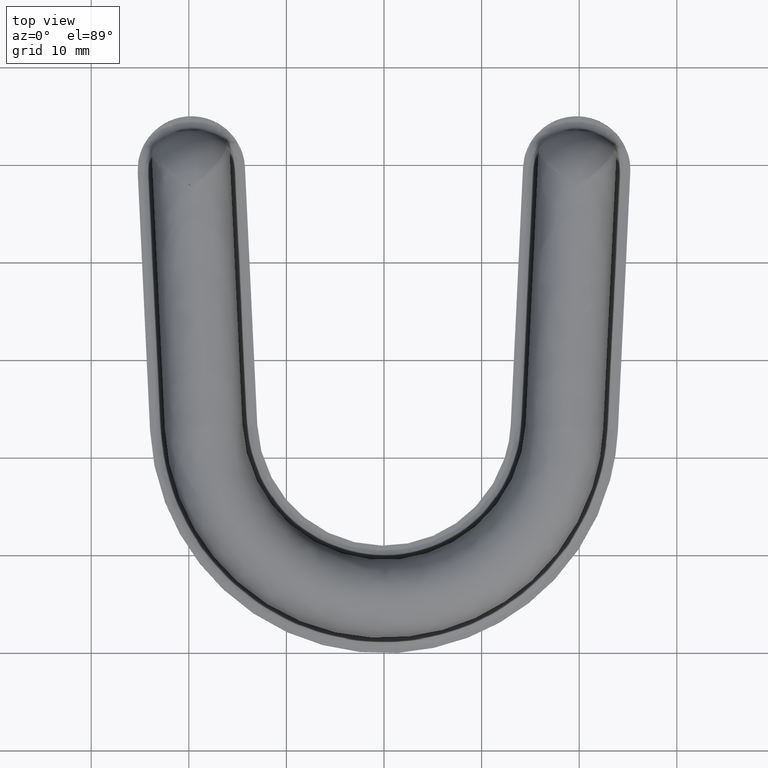
[diagram: clean part render]
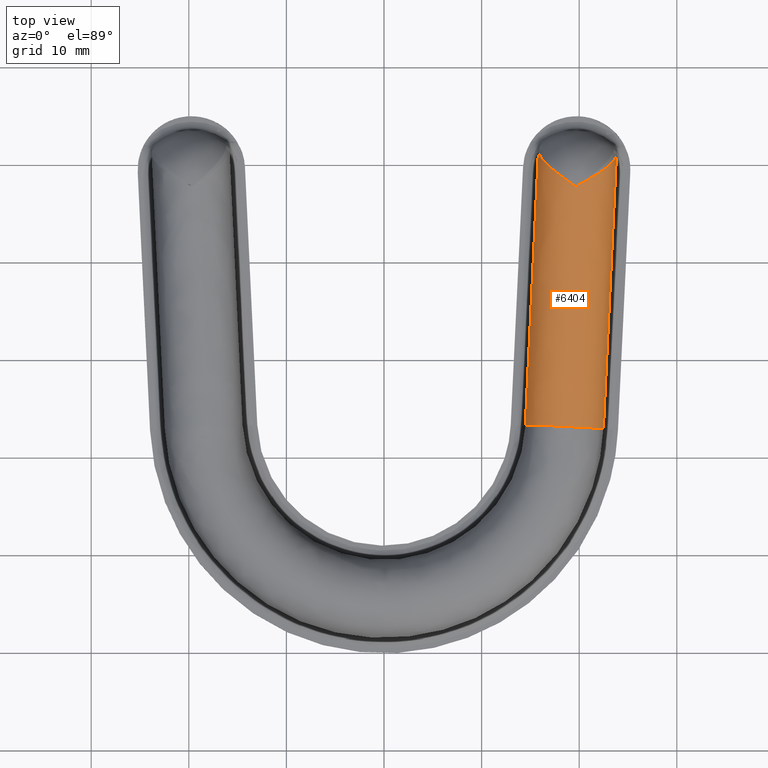
[diagram: same view with one face highlighted and labeled with its STEP entity id]
A machine part, top view. The second image highlights one B-rep face of the part: STEP entity #6404.
In plain terms, the highlighted face is a freeform B-spline surface patch.
Its self-contained STEP definition (entity closure, byte-faithful):
#4223=CARTESIAN_POINT('',(19.696274890317451,47.703062010686402,6.999754139313130));
#4224=VERTEX_POINT('',#4223);
#4225=CARTESIAN_POINT('',(19.694373272228951,47.703484691524693,6.999774007242640));
#4226=VERTEX_POINT('',#4225);
#4227=CARTESIAN_POINT('',(19.696274890317468,47.703062010686452,6.999754139313131));
#4228=CARTESIAN_POINT('',(19.695641020727209,47.703202904193972,6.999761234061205));
#4229=CARTESIAN_POINT('',(19.695007149436389,47.703343797782622,6.999768175265299));
#4230=CARTESIAN_POINT('',(19.694373272228951,47.703484691524693,6.999774007242640));
#4231=QUASI_UNIFORM_CURVE('',3,(#4227,#4228,#4229,#4230),.UNSPECIFIED.,.F.,.U.);
#4232=EDGE_CURVE('',#4224,#4226,#4231,.T.);
#4234=CARTESIAN_POINT('',(23.817407432113001,51.077363115184298,3.000000000000085));
#4235=VERTEX_POINT('',#4234);
#4236=CARTESIAN_POINT('',(23.817407432113001,51.077363115184298,3.000000000000085));
#4237=CARTESIAN_POINT('',(23.811504648685140,50.953636637018938,3.276302199455250));
#4238=CARTESIAN_POINT('',(23.777154304607411,50.828395479552462,3.544862693369074));
#4239=CARTESIAN_POINT('',(23.657510420612539,50.572176270131543,4.066613603286871));
#4240=CARTESIAN_POINT('',(23.572161472845860,50.441224118619523,4.319803310137519));
#4241=CARTESIAN_POINT('',(23.433902966155198,50.271976701043840,4.625767744089024));
#4242=CARTESIAN_POINT('',(23.404575700992240,50.237754157374887,4.686590815460784));
#4243=CARTESIAN_POINT('',(23.343190247341450,50.169222906426207,4.806208216850171));
#4244=CARTESIAN_POINT('',(23.311152437104369,50.134926365729662,4.864988606607472));
#4245=CARTESIAN_POINT('',(23.211128480384762,50.031870909840897,5.038289973455373));
#4246=CARTESIAN_POINT('',(23.139239381819358,49.962946174229053,5.149776832105212));
#4247=CARTESIAN_POINT('',(22.908645603783981,49.754937168423133,5.472236565154709));
#4248=CARTESIAN_POINT('',(22.735113627996760,49.614638222041727,5.671296221715901));
#4249=CARTESIAN_POINT('',(22.494084502777920,49.435194564060282,5.899361033517941));
#4250=CARTESIAN_POINT('',(22.444702991798898,49.399132910356037,5.943880467310346));
#4251=CARTESIAN_POINT('',(22.344483315567011,49.327229613742787,6.029993560731509));
#4252=CARTESIAN_POINT('',(22.293533863497579,49.291304425463338,6.071694821716544));
#4253=CARTESIAN_POINT('',(22.138253420150821,49.183531924917823,6.192793777206910));
#4254=CARTESIAN_POINT('',(22.031494635943599,49.111687407238882,6.268193431576325));
#4255=CARTESIAN_POINT('',(21.702023749052760,48.895577920035578,6.478621253681845));
#4256=CARTESIAN_POINT('',(21.470171178617282,48.750752112486083,6.597983592236779));
#4257=CARTESIAN_POINT('',(21.165902163158499,48.566759897452997,6.720189019347099));
#4258=CARTESIAN_POINT('',(21.104217859740540,48.529750868563653,6.743306673490809));
#4259=CARTESIAN_POINT('',(20.979944532805838,48.455702594688837,6.786583450517439));
#4260=CARTESIAN_POINT('',(20.917409755709450,48.418694539555702,6.806730210644484));
#4261=CARTESIAN_POINT('',(20.728663365705849,48.307641040563851,6.862722217280962));
#4262=CARTESIAN_POINT('',(20.601310871779152,48.233567489413140,6.894126459923262));
#4263=CARTESIAN_POINT('',(20.343801740094431,48.084920104476630,6.945052310293685));
#4264=CARTESIAN_POINT('',(20.213612937630380,48.010345597709218,6.964552019993813));
#4265=CARTESIAN_POINT('',(20.017682565996392,47.898405394635716,6.984630087362801));
#4266=CARTESIAN_POINT('',(19.952184183800739,47.861054553461287,6.989804604509751));
#4267=CARTESIAN_POINT('',(19.853959509659688,47.804810688579337,6.995272711646257));
#4268=CARTESIAN_POINT('',(19.821201018457590,47.786046810987912,6.996713822406410));
#4269=CARTESIAN_POINT('',(19.772253057772520,47.757538444676207,6.998301020520115));
#4270=CARTESIAN_POINT('',(19.755950194464639,47.748002935225777,6.998734493554608));
#4271=CARTESIAN_POINT('',(19.731801257406499,47.733192946558610,6.999239245189216));
#4272=CARTESIAN_POINT('',(19.723783892761499,47.728194160724733,6.999383418176059));
#4273=CARTESIAN_POINT('',(19.712144203527959,47.720120373441560,6.999560875374033));
#4274=CARTESIAN_POINT('',(19.708317186112300,47.717340089251437,6.999613645956629));
#4275=CARTESIAN_POINT('',(19.703008008949030,47.712718330872491,6.999680121361167));
#4276=CARTESIAN_POINT('',(19.701307185512729,47.711102911712999,6.999700213372075));
#4277=CARTESIAN_POINT('',(19.698272976353181,47.707473074782229,6.999734197273455));
#4278=CARTESIAN_POINT('',(19.696901804323439,47.705415785007503,6.999748439744554));
#4279=CARTESIAN_POINT('',(19.696274890317451,47.703062010686402,6.999754139313130));
#4280=B_SPLINE_CURVE_WITH_KNOTS('',3,(#4236,#4237,#4238,#4239,#4240,#4241,#4242,#4243,#4244,#4245,#4246,#4247,#4248,#4249,#4250,#4251,#4252,#4253,#4254,#4255,#4256,#4257,#4258,#4259,#4260,#4261,#4262,#4263,#4264,#4265,#4266,#4267,#4268,#4269,#4270,#4271,#4272,#4273,#4274,#4275,#4276,#4277,#4278,#4279),.UNSPECIFIED.,.F.,.U.,(4,2,2,2,2,2,2,2,2,2,2,2,2,2,2,2,2,2,2,2,2,4),(0.0,0.124999999999998,0.249999999999996,0.281249999999997,0.312499999999997,0.374999999999998,0.500000000000000,0.531250000000002,0.562500000000003,0.625000000000005,0.750000000000008,0.781250000000007,0.812500000000006,0.875000000000003,0.937500000000001,0.968749999999999,0.984374999999998,0.992187499999999,0.996093750000000,0.998046875000001,0.999023437500001,1.0),.UNSPECIFIED.);
#4281=EDGE_CURVE('',#4235,#4224,#4280,.T.);
#4751=CARTESIAN_POINT('',(15.827322837945649,51.475923039123600,3.000000000000085));
#4752=VERTEX_POINT('',#4751);
#4966=CARTESIAN_POINT('',(19.648461836325701,47.703484692421199,6.999997624523350));
#4967=VERTEX_POINT('',#4966);
#4968=CARTESIAN_POINT('',(19.646560111323399,47.703535510413197,6.999996446272830));
#4969=VERTEX_POINT('',#4968);
#4970=CARTESIAN_POINT('',(19.648461836325701,47.703484692421199,6.999997624523350));
#4971=CARTESIAN_POINT('',(19.647827928481799,47.703501631804343,6.999997985762443));
#4972=CARTESIAN_POINT('',(19.647194019802249,47.703518571113548,6.999997291383392));
#4973=CARTESIAN_POINT('',(19.646560111323389,47.703535510413182,6.999996446272832));
#4974=QUASI_UNIFORM_CURVE('',3,(#4970,#4971,#4972,#4973),.UNSPECIFIED.,.F.,.U.);
#4975=EDGE_CURVE('',#4967,#4969,#4974,.T.);
#5021=CARTESIAN_POINT('',(19.646560111323399,47.703535510413197,6.999996446272830));
#5022=CARTESIAN_POINT('',(19.646612412928189,47.705970182292923,6.999996361254637));
#5023=CARTESIAN_POINT('',(19.645730760561339,47.708295202448411,6.999995109303510));
#5024=CARTESIAN_POINT('',(19.643339791082859,47.712424871603943,6.999990146186087));
#5025=CARTESIAN_POINT('',(19.641819997006468,47.714314889516132,6.999986355029443));
#5026=CARTESIAN_POINT('',(19.637061227310070,47.719620393954607,6.999971024616184));
#5027=CARTESIAN_POINT('',(19.633531558548690,47.722791535936501,6.999955371924891));
#5028=CARTESIAN_POINT('',(19.622715231783420,47.732072031867077,6.999890670638830));
#5029=CARTESIAN_POINT('',(19.615159382770859,47.737865802968400,6.999824015978622));
#5030=CARTESIAN_POINT('',(19.592412352515019,47.755043961098572,6.999552233289144));
#5031=CARTESIAN_POINT('',(19.576997230689990,47.766155913778341,6.999275127670710));
#5032=CARTESIAN_POINT('',(19.530694840837359,47.799408050836242,6.998153764263072));
#5033=CARTESIAN_POINT('',(19.499670891613341,47.821337972764667,6.997019888678050));
#5034=CARTESIAN_POINT('',(19.406655104360109,47.887064987883342,6.992460382570861));
#5035=CARTESIAN_POINT('',(19.344633762998878,47.930714661113782,6.987877218959232));
#5036=CARTESIAN_POINT('',(19.158879927749709,48.061643525539957,6.969494037806289));
#5037=CARTESIAN_POINT('',(19.035871248091940,48.148517818896153,6.951093073519428));
#5038=CARTESIAN_POINT('',(18.671680721399280,48.407432175939462,6.878116101906931));
#5039=CARTESIAN_POINT('',(18.434503595915849,48.578269605087598,6.805811584208399));
#5040=CARTESIAN_POINT('',(18.146509799039560,48.791552850270328,6.685710531609378));
#5041=CARTESIAN_POINT('',(18.089337233743180,48.834195802378638,6.660195078785725));
#5042=CARTESIAN_POINT('',(17.975892115515119,48.919503205303577,6.606131687529506));
#5043=CARTESIAN_POINT('',(17.919739038673921,48.962079536392110,6.577633092684168));
#5044=CARTESIAN_POINT('',(17.754113922816909,49.088822673231910,6.488347626830007));
#5045=CARTESIAN_POINT('',(17.647037836893190,49.172330881092762,6.423574856408138));
#5046=CARTESIAN_POINT('',(17.336015337027298,49.420518807120438,6.213935538458752));
#5047=CARTESIAN_POINT('',(17.142197251228040,49.582868235736818,6.053852304461339));
#5048=CARTESIAN_POINT('',(16.873758034676950,49.823918786604771,5.783036907198256));
#5049=CARTESIAN_POINT('',(16.787903543407950,49.903958605455500,5.687491867573734));
#5050=CARTESIAN_POINT('',(16.624704619987909,50.063136241410078,5.486292782518927));
#5051=CARTESIAN_POINT('',(16.548458092384099,50.141197543506053,5.382017040076087));
#5052=CARTESIAN_POINT('',(16.335698311828139,50.371491696568931,5.058645905973424));
#5053=CARTESIAN_POINT('',(16.215040246425591,50.519856411944779,4.829083234442397));
#5054=CARTESIAN_POINT('',(16.067652166627191,50.736821554964720,4.464237257873506));
#5055=CARTESIAN_POINT('',(16.024151936101450,50.808206286192252,4.339185910320652));
#5056=CARTESIAN_POINT('',(15.967893284522900,50.914109185141953,4.146327463095065));
#5057=CARTESIAN_POINT('',(15.950605054952961,50.949300402533659,4.080994978918760));
#5058=CARTESIAN_POINT('',(15.919372891592561,51.018829120422353,3.949479063109642));
#5059=CARTESIAN_POINT('',(15.905423395867761,51.053158520948230,3.883319025123068));
#5060=CARTESIAN_POINT('',(15.844028914139740,51.222762611910092,3.550570397338198));
#5061=CARTESIAN_POINT('',(15.821408612214251,51.351955493656071,3.278186092402569));
#5062=CARTESIAN_POINT('',(15.827322837945649,51.475923039123600,3.000000000000085));
#5063=B_SPLINE_CURVE_WITH_KNOTS('',3,(#5021,#5022,#5023,#5024,#5025,#5026,#5027,#5028,#5029,#5030,#5031,#5032,#5033,#5034,#5035,#5036,#5037,#5038,#5039,#5040,#5041,#5042,#5043,#5044,#5045,#5046,#5047,#5048,#5049,#5050,#5051,#5052,#5053,#5054,#5055,#5056,#5057,#5058,#5059,#5060,#5061,#5062),.UNSPECIFIED.,.F.,.U.,(4,2,2,2,2,2,2,2,2,2,2,2,2,2,2,2,2,2,2,2,4),(0.0,0.000976562499999,0.001953124999998,0.003906249999996,0.007812499999996,0.015624999999996,0.031249999999996,0.062499999999994,0.124999999999994,0.249999999999995,0.281249999999995,0.312499999999995,0.374999999999997,0.499999999999999,0.562500000000000,0.625000000000000,0.750000000000001,0.812500000000002,0.843750000000001,0.875000000000000,1.0),.UNSPECIFIED.);
#5064=EDGE_CURVE('',#4969,#4752,#5063,.T.);
#6014=CARTESIAN_POINT('',(19.651895699472700,47.703484692415003,6.999992146283820));
#6015=VERTEX_POINT('',#6014);
#6016=CARTESIAN_POINT('',(19.648461836325701,47.703484692421199,6.999997624523350));
#6017=CARTESIAN_POINT('',(19.649606457094791,47.703484692432490,6.999996288637163));
#6018=CARTESIAN_POINT('',(19.650751078283740,47.703484692423743,6.999994462557114));
#6019=CARTESIAN_POINT('',(19.651895699472700,47.703484692415003,6.999992146283820));
#6020=B_SPLINE_CURVE_WITH_KNOTS('',3,(#6016,#6017,#6018,#6019),.UNSPECIFIED.,.F.,.U.,(4,4),(0.213561950272849,0.999997089737966),.UNSPECIFIED.);
#6021=EDGE_CURVE('',#4967,#6015,#6020,.T.);
#6023=CARTESIAN_POINT('',(19.651895699472700,47.703484692415003,6.999992146283820));
#6024=CARTESIAN_POINT('',(19.666055155323040,47.703484679478777,6.999994445628132));
#6025=CARTESIAN_POINT('',(19.680214611170229,47.703484666542707,6.999921731218048));
#6026=CARTESIAN_POINT('',(19.694373272228951,47.703484691524693,6.999774007242640));
#6027=B_SPLINE_CURVE_WITH_KNOTS('',3,(#6023,#6024,#6025,#6026),.UNSPECIFIED.,.F.,.U.,(4,4),(0.0,0.977315848034688),.UNSPECIFIED.);
#6028=EDGE_CURVE('',#6015,#4226,#6027,.T.);
#6122=CARTESIAN_POINT('',(14.483526495229439,23.309015005962902,3.000000000000085));
#6123=VERTEX_POINT('',#6122);
#6206=CARTESIAN_POINT('',(22.474437665011251,22.927781905804501,3.000000000000085));
#6207=VERTEX_POINT('',#6206);
#6223=CARTESIAN_POINT('',(22.474437665011259,22.927781905804501,3.000000000000085));
#6224=CARTESIAN_POINT('',(22.474437665011259,22.927781905804505,7.000000000000085));
#6225=CARTESIAN_POINT('',(18.478982080120350,23.118398455883700,7.000000000000085));
#6226=CARTESIAN_POINT('',(14.483526495229459,23.309015005962895,7.000000000000085));
#6227=CARTESIAN_POINT('',(14.483526495229450,23.309015005962902,3.000000000000085));
#6235=(BOUNDED_CURVE()B_SPLINE_CURVE(2,(#6223,#6224,#6225,#6226,#6227),.UNSPECIFIED.,.F.,.U.)B_SPLINE_CURVE_WITH_KNOTS((3,2,3),(0.0,0.500000000000000,1.0),.UNSPECIFIED.)CURVE()GEOMETRIC_REPRESENTATION_ITEM()RATIONAL_B_SPLINE_CURVE((1.0,0.707106781186548,1.0,0.707106781186548,1.0))REPRESENTATION_ITEM(''));
#6236=EDGE_CURVE('',#6207,#6123,#6235,.T.);
#6348=CARTESIAN_POINT('',(14.483526495229439,23.309015005962902,3.000000000000085));
#6349=CARTESIAN_POINT('',(15.827322837945649,51.475923039123600,3.000000000000085));
#6350=QUASI_UNIFORM_CURVE('',1,(#6348,#6349),.UNSPECIFIED.,.F.,.U.);
#6351=EDGE_CURVE('',#6123,#4752,#6350,.T.);
#6366=CARTESIAN_POINT('',(22.474437665011251,22.927781905804501,3.000000000000085));
#6367=CARTESIAN_POINT('',(23.817407432113001,51.077363115184298,3.000000000000085));
#6368=QUASI_UNIFORM_CURVE('',1,(#6366,#6367),.UNSPECIFIED.,.F.,.U.);
#6369=EDGE_CURVE('',#6207,#4235,#6368,.T.);
#6375=CARTESIAN_POINT('',(22.439473612147179,22.223674524575880,2.895292206768587));
#6376=CARTESIAN_POINT('',(23.851299705899930,51.816532273996252,2.895292206768587));
#6377=CARTESIAN_POINT('',(22.548728533813755,22.218462153719827,7.072314867053785));
#6378=CARTESIAN_POINT('',(23.960554627566491,51.811319903140195,7.072314867053790));
#6379=CARTESIAN_POINT('',(18.375656855326870,22.417552472629751,6.999390780625658));
#6380=CARTESIAN_POINT('',(19.787482949079610,52.010410222050119,6.999390780625658));
#6381=CARTESIAN_POINT('',(14.202585176839985,22.616642791539650,6.926466694197535));
#6382=CARTESIAN_POINT('',(15.614411270592736,52.209500540960022,6.926466694197530));
#6383=CARTESIAN_POINT('',(14.457383915267879,22.604486766913251,2.755805841860674));
#6384=CARTESIAN_POINT('',(15.869210009020620,52.197344516333622,2.755805841860671));
#6392=(BOUNDED_SURFACE()B_SPLINE_SURFACE(1,2,((#6375,#6377,#6379,#6381,#6383),(#6376,#6378,#6380,#6382,#6384)),.UNSPECIFIED.,.F.,.F.,.U.)B_SPLINE_SURFACE_WITH_KNOTS((2,2),(3,2,3),(0.0,29.626516546776639),(0.0,6.832831324267249,13.665662648534500),.UNSPECIFIED.)GEOMETRIC_REPRESENTATION_ITEM()RATIONAL_B_SPLINE_SURFACE(((1.0,0.691513055782269,1.0,0.691513055782269,1.0),(1.0,0.691513055782269,1.0,0.691513055782269,1.0)))REPRESENTATION_ITEM('')SURFACE());
#6393=ORIENTED_EDGE('',*,*,#4281,.T.);
#6394=ORIENTED_EDGE('',*,*,#4232,.T.);
#6395=ORIENTED_EDGE('',*,*,#6028,.F.);
#6396=ORIENTED_EDGE('',*,*,#6021,.F.);
#6397=ORIENTED_EDGE('',*,*,#4975,.T.);
#6398=ORIENTED_EDGE('',*,*,#5064,.T.);
#6399=ORIENTED_EDGE('',*,*,#6351,.F.);
#6400=ORIENTED_EDGE('',*,*,#6236,.F.);
#6401=ORIENTED_EDGE('',*,*,#6369,.T.);
#6402=EDGE_LOOP('',(#6393,#6394,#6395,#6396,#6397,#6398,#6399,#6400,#6401));
#6403=FACE_OUTER_BOUND('',#6402,.T.);
#6404=ADVANCED_FACE('',(#6403),#6392,.T.);